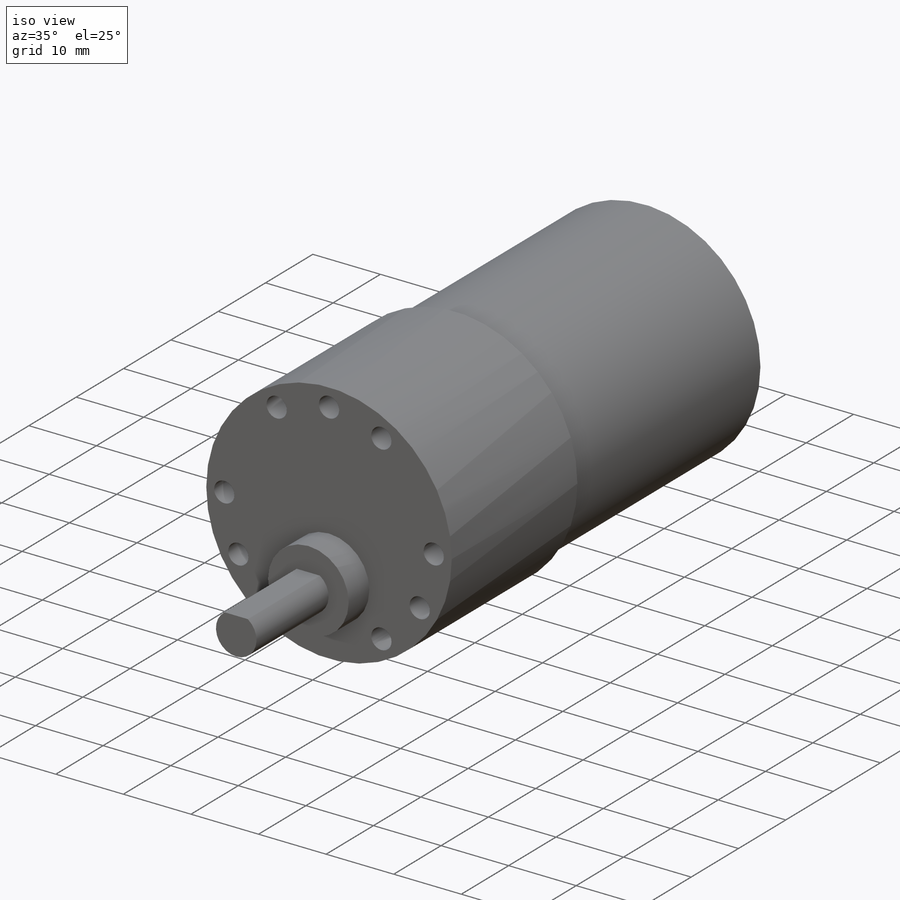
[diagram: iso view]
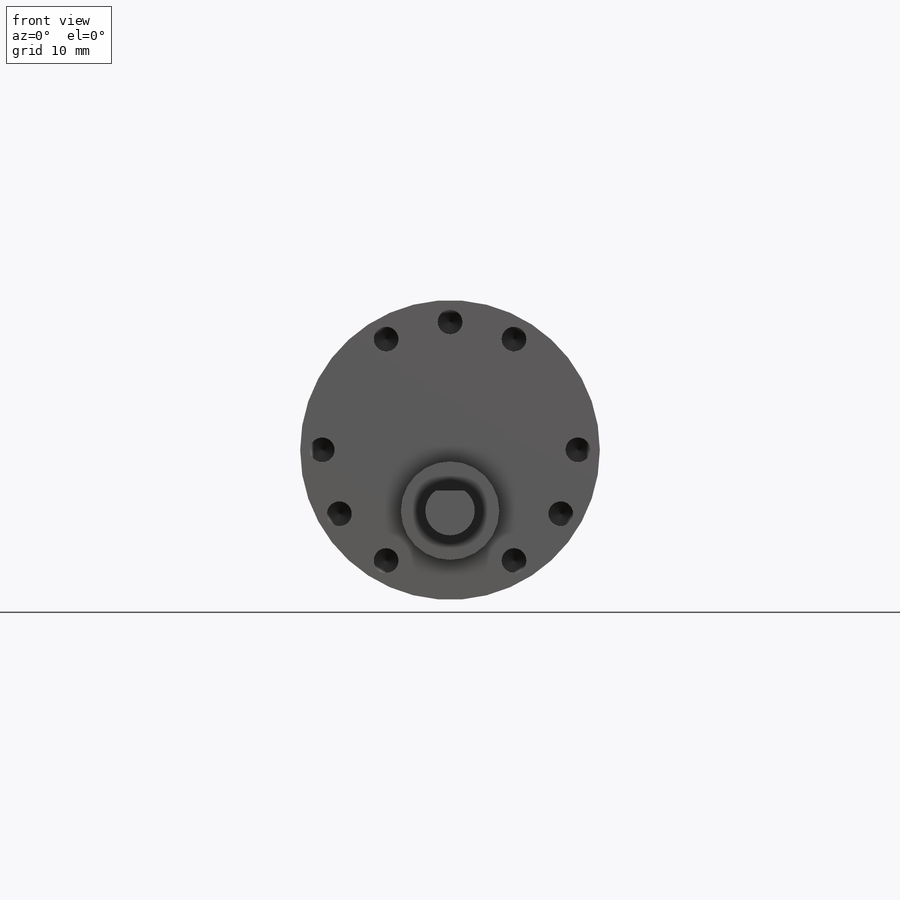
[diagram: front view]
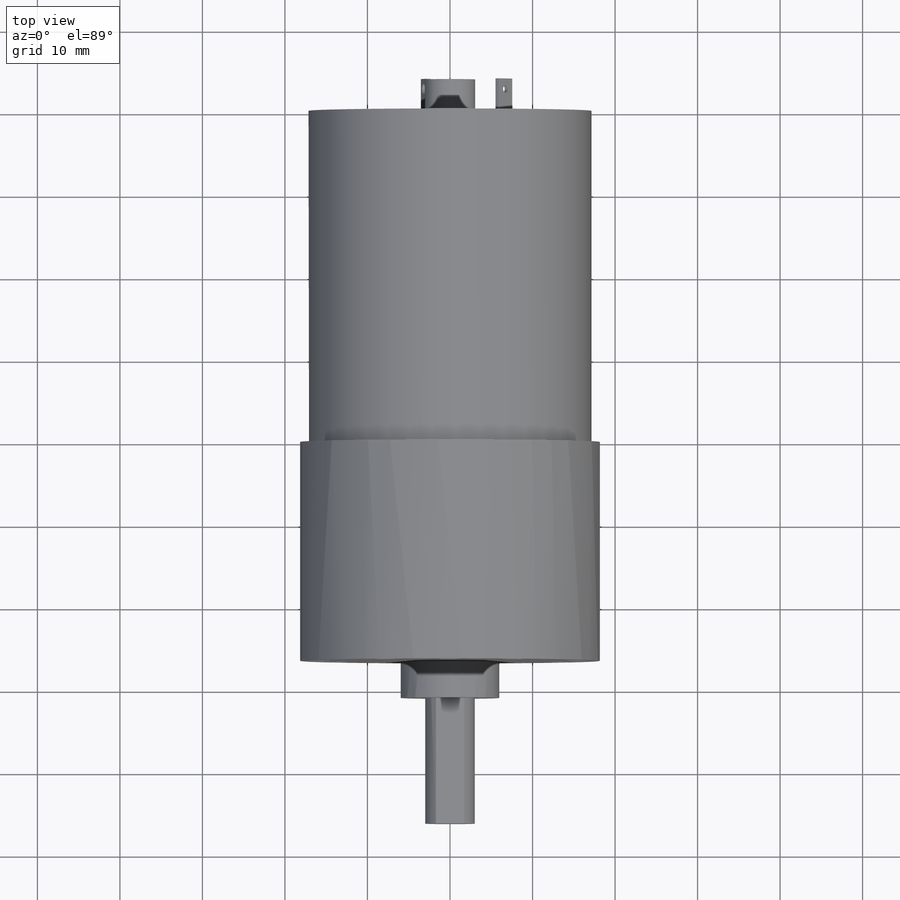
[diagram: top view]
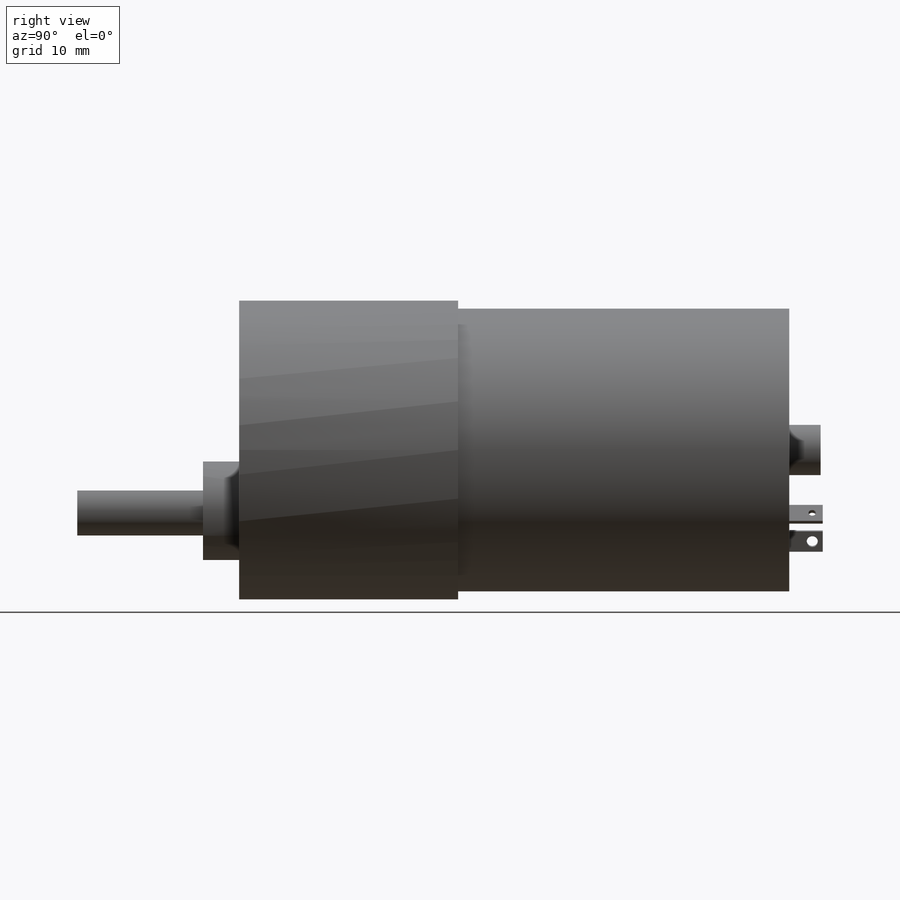
[diagram: right view]
SOLIDWORKS PART (.sldprt)
format: sldprt  version: not decoded by parser v0  size: 662,528 bytes
history: native  units: mm
features: sketch x12, extrude x7, plane x2, material x1, hole x1, pattern_circular x1, cut_extrude x1 (+13 scaffold rows collapsed)
feature tree (38):
  scaffold x13  (default folders/planes/origin — collapsed)
  material  "Material <not specified>"
  sketch  "Sketch1"  dims[D1=36.322mm]
  extrude  "Boss-Extrude1"  Depth=26.543mm
  sketch  "Sketch5"  dims[D1=11.938mm D2=7.366mm]
  extrude  "Boss-Extrude5"  Depth=4.3688mm
  sketch  "Sketch6"  dims[D1=6.0mm D2=2.461mm]
  extrude  "Boss-Extrude6"  Depth=15.24mm
  sketch  "Sketch9"  dims[D1=30.988mm]
  hole  "Ø3.0mm Dowel Hole1"  Diameter=3mm Depth=10.16mm
  sketch  "Sketch11"
  sketch  "Sketch12"  dims[hole-wizard template sketch: 50 standard entries collapsed; hole parameters above]
  pattern_circular  "CirPattern2"  Count=12 Angle=360deg
  sketch  "Sketch2"  dims[D1=34.29mm]
  extrude  "Boss-Extrude2"  Depth=40.132mm
  sketch  "Sketch3"  dims[D1=6.096mm]
  extrude  "Boss-Extrude3"  Depth=3.81mm
  sketch  "Sketch13"  dims[D1=33.274mm]
  cut_extrude  "Cut-Extrude1"  Depth=1.016mm
  sketch  "Sketch14"  dims[c1.D1=22.86mm c1.D2=20.32mm c1.D3=11.43mm c2.D3=130.0deg]
  plane  "Plane1"
  plane  "Plane2"
  sketch  "Sketch15"  dims[c1.D4=0.889mm c1.D1=5.08mm c1.D2=2.54mm c1.D3=5.08mm c2.D3=90.0deg c3.D3=1.27mm c3.D5=1.27mm c3.D6=1.27mm]
  extrude  "Boss-Extrude7"  Depth=0.508mm
  sketch  "Sketch16"  dims[c1.D1=~2.583925mm c2.D1=90.0deg c3.D1=1.27mm c3.D2=2.54mm c3.D3=5.08mm c3.D4=1.27mm c3.D5=~1.899284mm c4.D5=90.0deg c5.D5=1.27mm]
  extrude  "Boss-Extrude8"  Depth=0.508mm
decode coverage: 21 of 22 modeling features carry decoded parameters
note: ~ marks probable driven/reference dimensions
note: suppression state not decoded; provenance and decode notes live in map.json
